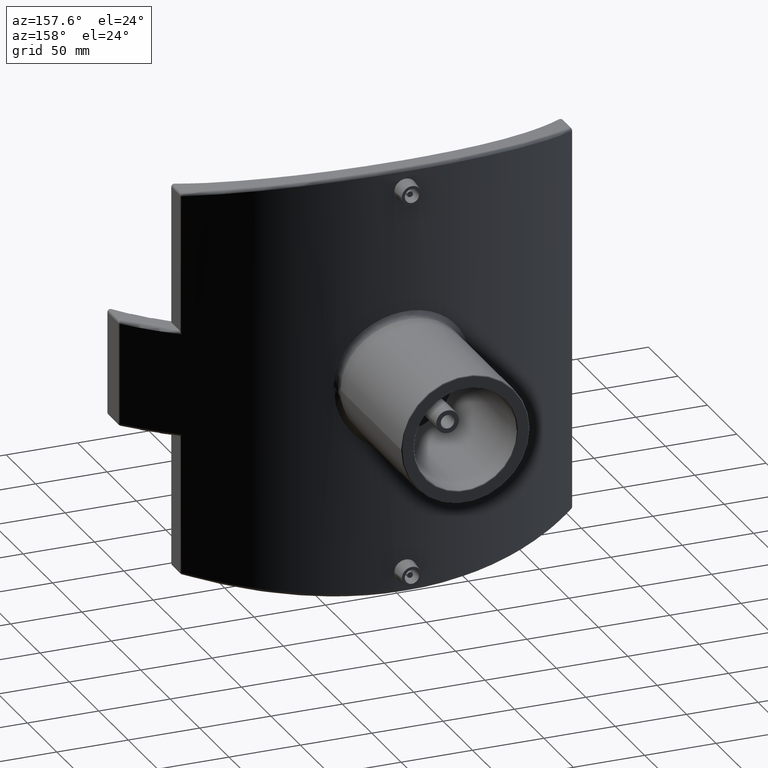
[diagram: clean part render]
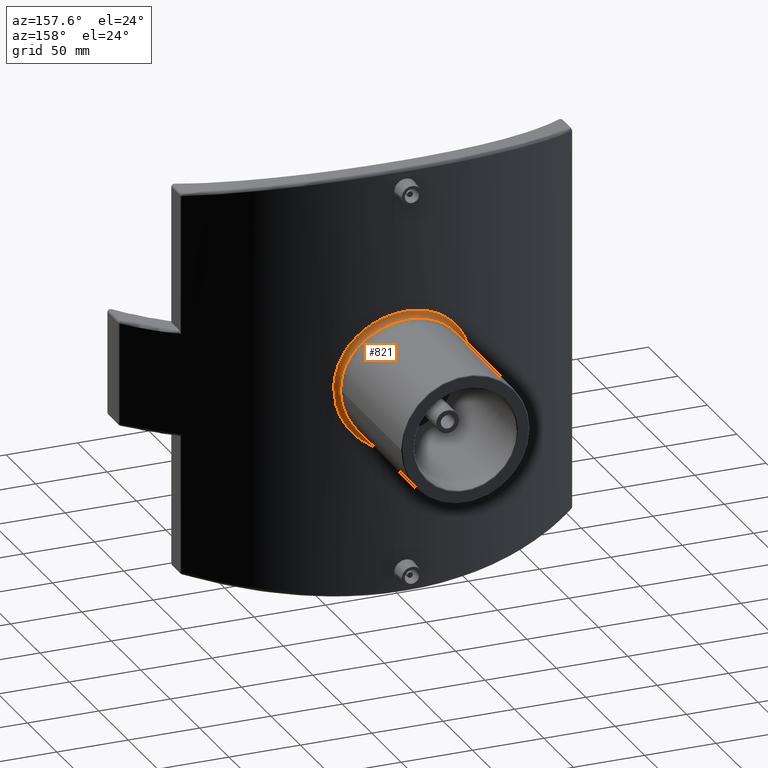
[diagram: same view with one face highlighted and labeled with its STEP entity id]
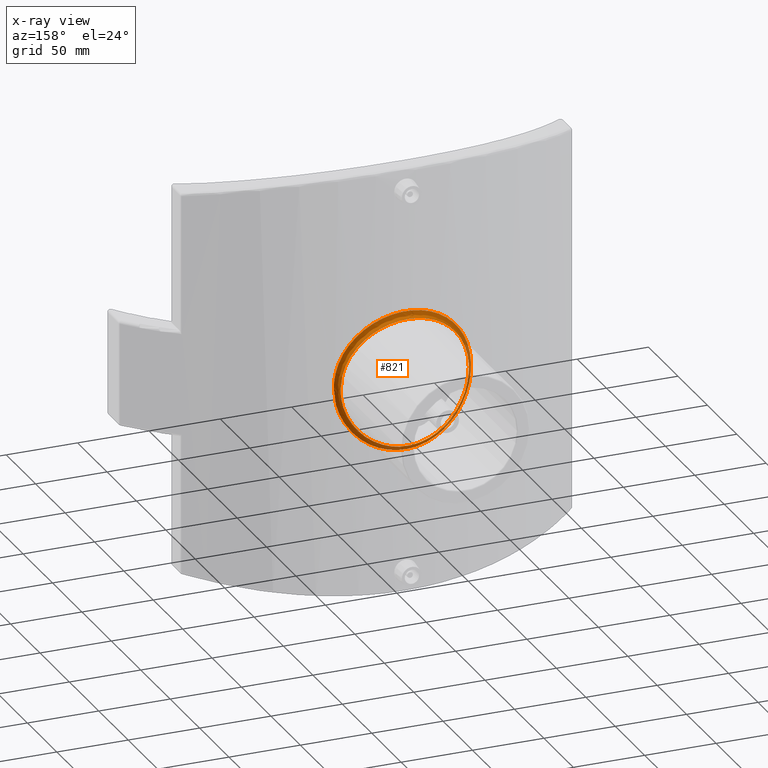
[diagram: x-ray of the same camera — body ghosted, the highlighted face saturated]
A machine part, auxiliary view. The second image highlights one B-rep face of the part: STEP entity #821.
The next image is the same camera in x-ray: the body ghosted, the highlighted face saturated — about 14% of this face is hidden behind the body in this view.
In plain terms, the highlighted face is a freeform B-spline surface patch.
Its self-contained STEP definition (entity closure, byte-faithful):
#89=B_SPLINE_SURFACE_WITH_KNOTS('',3,3,((#1392,#1393,#1394,#1395,#1396,
#1397,#1398,#1399,#1400,#1401,#1402,#1403,#1404,#1405,#1406,#1407,#1408,
#1409,#1410,#1411,#1412,#1413),(#1414,#1415,#1416,#1417,#1418,#1419,#1420,
#1421,#1422,#1423,#1424,#1425,#1426,#1427,#1428,#1429,#1430,#1431,#1432,
#1433,#1434,#1435),(#1436,#1437,#1438,#1439,#1440,#1441,#1442,#1443,#1444,
#1445,#1446,#1447,#1448,#1449,#1450,#1451,#1452,#1453,#1454,#1455,#1456,
#1457),(#1458,#1459,#1460,#1461,#1462,#1463,#1464,#1465,#1466,#1467,#1468,
#1469,#1470,#1471,#1472,#1473,#1474,#1475,#1476,#1477,#1478,#1479),(#1480,
#1481,#1482,#1483,#1484,#1485,#1486,#1487,#1488,#1489,#1490,#1491,#1492,
#1493,#1494,#1495,#1496,#1497,#1498,#1499,#1500,#1501)),.UNSPECIFIED.,.F.,
 .T.,.F.,(4,1,4),(4,1,1,1,1,1,1,1,1,1,1,1,1,1,1,1,1,1,1,4),(0.,0.571428571428571,
1.),(0.,1.94344182245271,3.88688364490542,5.83032546735814,6.80204637858449,
7.77376728981085,9.06939517144599,10.3650230530811,11.6606509347163,12.9562788163514,
14.2519066979866,15.5475345796217,16.8431624612568,18.138790342892,19.4344182245271,
20.7300461061623,22.0256739877974,23.3213018694325,25.2647436918853,27.208185514338),
 .UNSPECIFIED.);
#95=B_SPLINE_CURVE_WITH_KNOTS('',3,(#1370,#1371,#1372,#1373,#1374,#1375,
#1376,#1377,#1378,#1379,#1380,#1381,#1382,#1383,#1384,#1385,#1386,#1387,
#1388,#1389,#1390,#1391),.UNSPECIFIED.,.T.,.F.,(4,1,1,1,1,1,1,1,1,1,1,1,
1,1,1,1,1,1,1,4),(0.,1.94344182245271,3.88688364490542,5.83032546735814,
6.80204637858449,7.77376728981085,9.06939517144599,10.3650230530811,11.6606509347163,
12.9562788163514,14.2519066979866,15.5475345796217,16.8431624612568,18.138790342892,
19.4344182245271,20.7300461061623,22.0256739877974,23.3213018694325,25.2647436918853,
27.208185514338),.UNSPECIFIED.);
#96=B_SPLINE_CURVE_WITH_KNOTS('',3,(#1504,#1505,#1506,#1507,#1508,#1509,
#1510,#1511,#1512,#1513,#1514,#1515,#1516,#1517,#1518,#1519,#1520,#1521,
#1522,#1523,#1524,#1525),.UNSPECIFIED.,.T.,.F.,(4,1,1,1,1,1,1,1,1,1,1,1,
1,1,1,1,1,1,1,4),(-27.208185514338,-25.2647436918853,-23.3213018694325,
-22.0256739877974,-20.7300461061623,-19.4344182245271,-18.138790342892,
-16.8431624612568,-15.5475345796217,-14.2519066979866,-12.9562788163514,
-11.6606509347163,-10.3650230530811,-9.06939517144599,-7.77376728981085,
-6.80204637858449,-5.83032546735814,-3.88688364490542,-1.94344182245271,
0.),.UNSPECIFIED.);
#184=FACE_OUTER_BOUND('',#255,.T.);
#255=EDGE_LOOP('',(#592,#593,#594,#595));
#338=CIRCLE('',#893,3.99999999999999);
#402=VERTEX_POINT('',#1369);
#403=VERTEX_POINT('',#1502);
#473=EDGE_CURVE('',#402,#402,#95,.T.);
#474=EDGE_CURVE('',#403,#402,#338,.T.);
#475=EDGE_CURVE('',#403,#403,#96,.T.);
#592=ORIENTED_EDGE('',*,*,#474,.T.);
#593=ORIENTED_EDGE('',*,*,#473,.T.);
#594=ORIENTED_EDGE('',*,*,#474,.F.);
#595=ORIENTED_EDGE('',*,*,#475,.T.);
#821=ADVANCED_FACE('',(#184),#89,.T.);
#893=AXIS2_PLACEMENT_3D('',#1503,#1028,#1029);
#1028=DIRECTION('center_axis',(0.,0.,-1.));
#1029=DIRECTION('ref_axis',(-0.223744292237445,-0.97464788087348,0.));
#1369=CARTESIAN_POINT('',(45.,213.447885911292,0.));
#1370=CARTESIAN_POINT('Ctrl Pts',(45.0024886701191,213.445550724185,0.000284685886741112));
#1371=CARTESIAN_POINT('Ctrl Pts',(45.0021378087417,213.445241269557,6.74986226223219));
#1372=CARTESIAN_POINT('Ctrl Pts',(41.8993235238534,214.261080911124,20.2467309235262));
#1373=CARTESIAN_POINT('Ctrl Pts',(29.0304410831379,216.952294981176,36.3576612636348));
#1374=CARTESIAN_POINT('Ctrl Pts',(13.5117861939613,218.723055542166,43.86078073309));
#1375=CARTESIAN_POINT('Ctrl Pts',(-0.00111616459963351,219.092455024382,
45.3799196024512));
#1376=CARTESIAN_POINT('Ctrl Pts',(-11.2554159685205,218.782415354238,44.1112648355901));
#1377=CARTESIAN_POINT('Ctrl Pts',(-22.8730424359105,217.706969174009,39.53449867843));
#1378=CARTESIAN_POINT('Ctrl Pts',(-33.4752767671484,216.024631372991,31.0684368364334));
#1379=CARTESIAN_POINT('Ctrl Pts',(-41.1325787028082,214.403038014707,19.8583929064339));
#1380=CARTESIAN_POINT('Ctrl Pts',(-45.1679209342173,213.40646547372,6.83477532724632));
#1381=CARTESIAN_POINT('Ctrl Pts',(-45.1669320152337,213.407538718333,-6.83410336340664));
#1382=CARTESIAN_POINT('Ctrl Pts',(-41.1332672311351,214.402364391786,-19.8586032921422));
#1383=CARTESIAN_POINT('Ctrl Pts',(-33.4757415034644,216.024824264969,-31.0682390937125));
#1384=CARTESIAN_POINT('Ctrl Pts',(-22.8726592855625,217.706907472461,-39.5343934601502));
#1385=CARTESIAN_POINT('Ctrl Pts',(-10.2003547197345,218.879672300646,-44.5267584375078));
#1386=CARTESIAN_POINT('Ctrl Pts',(3.42818400813295,219.138223002848,-45.5543692968936));
#1387=CARTESIAN_POINT('Ctrl Pts',(16.730595010822,218.387441794427,-42.5017747976053));
#1388=CARTESIAN_POINT('Ctrl Pts',(30.4550041574747,216.64886716341,-34.5618133026467));
#1389=CARTESIAN_POINT('Ctrl Pts',(41.9014286921182,214.262937638891,-20.2507345345465));
#1390=CARTESIAN_POINT('Ctrl Pts',(45.0028395314966,213.445860178813,-6.74929289045871));
#1391=CARTESIAN_POINT('Ctrl Pts',(45.0024886701191,213.445550724185,0.000284685886734345));
#1392=CARTESIAN_POINT('Ctrl Pts',(48.1076832206702,209.54700185251,0.000309991298890729));
#1393=CARTESIAN_POINT('Ctrl Pts',(48.1073081496797,209.546698050022,7.34985001887504));
#1394=CARTESIAN_POINT('Ctrl Pts',(44.7903981049006,210.347636510921,22.0464403389507));
#1395=CARTESIAN_POINT('Ctrl Pts',(31.0335562466624,212.989695986086,39.5894533759579));
#1396=CARTESIAN_POINT('Ctrl Pts',(14.4441062966396,214.728113888428,47.7595167982535));
#1397=CARTESIAN_POINT('Ctrl Pts',(-0.00119318052330378,215.090766348137,
49.4136902337802));
#1398=CARTESIAN_POINT('Ctrl Pts',(-12.0320453808588,214.786389503019,48.0322661543092));
#1399=CARTESIAN_POINT('Ctrl Pts',(-24.451293968779,213.730586175397,43.0486763387349));
#1400=CARTESIAN_POINT('Ctrl Pts',(-35.7850878479866,212.078976005448,33.8300756663386));
#1401=CARTESIAN_POINT('Ctrl Pts',(-43.9707475021902,210.487000790694,21.6235833870058));
#1402=CARTESIAN_POINT('Ctrl Pts',(-48.2845303949243,209.508630487899,7.44231091189044));
#1403=CARTESIAN_POINT('Ctrl Pts',(-48.2834732400292,209.50968412987,-7.44157921793164));
#1404=CARTESIAN_POINT('Ctrl Pts',(-43.971483539321,210.486339471388,-21.623812473666));
#1405=CARTESIAN_POINT('Ctrl Pts',(-35.7855846513443,212.079165374285,-33.8298603464869));
#1406=CARTESIAN_POINT('Ctrl Pts',(-24.4508843808625,213.730525600818,-43.0485617677192));
#1407=CARTESIAN_POINT('Ctrl Pts',(-10.9041843706142,214.881870066844,-48.4846925208418));
#1408=CARTESIAN_POINT('Ctrl Pts',(3.66473044400616,215.135698381792,-49.6036465677285));
#1409=CARTESIAN_POINT('Ctrl Pts',(17.8850145549478,214.398630072154,-46.2797103351702));
#1410=CARTESIAN_POINT('Ctrl Pts',(32.5564148958901,212.691810228919,-37.6339744851042));
#1411=CARTESIAN_POINT('Ctrl Pts',(44.7926485308438,210.349459325852,-22.0507998265062));
#1412=CARTESIAN_POINT('Ctrl Pts',(48.1080582916608,209.547305654999,-7.34923003627726));
#1413=CARTESIAN_POINT('Ctrl Pts',(48.1076832206702,209.54700185251,0.000309991298890729));
#1414=CARTESIAN_POINT('Ctrl Pts',(47.108906247104,209.776439069321,0.000285277363843676));
#1415=CARTESIAN_POINT('Ctrl Pts',(47.1085628124149,209.776170731857,7.19199062258069));
#1416=CARTESIAN_POINT('Ctrl Pts',(43.8340471603791,210.549767430716,21.5731152201964));
#1417=CARTESIAN_POINT('Ctrl Pts',(30.302784175034,213.086687911726,38.679406740579));
#1418=CARTESIAN_POINT('Ctrl Pts',(14.0831711336165,214.741754098247,46.6018526998167));
#1419=CARTESIAN_POINT('Ctrl Pts',(-0.000762425193477644,215.086009009514,
48.2036832681891));
#1420=CARTESIAN_POINT('Ctrl Pts',(-11.7326378360145,214.796838086272,46.8658663232957));
#1421=CARTESIAN_POINT('Ctrl Pts',(-23.8644231016041,213.792153152184,42.033810237687));
#1422=CARTESIAN_POINT('Ctrl Pts',(-34.9761539197698,212.212848379825,33.0658193734816));
#1423=CARTESIAN_POINT('Ctrl Pts',(-43.0291603652268,210.682857702419,21.1532694477144));
#1424=CARTESIAN_POINT('Ctrl Pts',(-47.2832007018895,209.739607679016,7.28380705509203));
#1425=CARTESIAN_POINT('Ctrl Pts',(-47.2820520371392,209.740493530194,-7.28317000579664));
#1426=CARTESIAN_POINT('Ctrl Pts',(-43.0299799276145,210.682257033534,-21.1534480807187));
#1427=CARTESIAN_POINT('Ctrl Pts',(-34.9765273084018,212.212966051361,-33.0656044468467));
#1428=CARTESIAN_POINT('Ctrl Pts',(-23.8642413539922,213.791976873188,-42.0336042645108));
#1429=CARTESIAN_POINT('Ctrl Pts',(-10.6306723499939,214.887738555217,-47.3045270536415));
#1430=CARTESIAN_POINT('Ctrl Pts',(3.5719898635975,215.128466980324,-48.3873345524154));
#1431=CARTESIAN_POINT('Ctrl Pts',(17.4449473311745,214.428455821676,-45.1684066230914));
#1432=CARTESIAN_POINT('Ctrl Pts',(31.8010143369738,212.80104341402,-36.7730189765762));
#1433=CARTESIAN_POINT('Ctrl Pts',(43.8361077685139,210.551377455498,-21.5771168511047));
#1434=CARTESIAN_POINT('Ctrl Pts',(47.1092496817931,209.776707406785,-7.191420067853));
#1435=CARTESIAN_POINT('Ctrl Pts',(47.108906247104,209.776439069321,0.000285277363843676));
#1436=CARTESIAN_POINT('Ctrl Pts',(45.5332463400698,210.881539509465,0.000278736733477896));
#1437=CARTESIAN_POINT('Ctrl Pts',(45.5330306247495,210.881247388437,6.91740284697706));
#1438=CARTESIAN_POINT('Ctrl Pts',(42.3315402244535,211.645237390486,20.7494153040702));
#1439=CARTESIAN_POINT('Ctrl Pts',(29.1679960093606,214.13910085833,37.099951981602));
#1440=CARTESIAN_POINT('Ctrl Pts',(13.5285437327906,215.753461862047,44.597214683182));
#1441=CARTESIAN_POINT('Ctrl Pts',(-0.000675642853615857,216.088597618408,
46.1096760635108));
#1442=CARTESIAN_POINT('Ctrl Pts',(-11.2708273344212,215.80730459808,44.8467974357338));
#1443=CARTESIAN_POINT('Ctrl Pts',(-22.9556813332758,214.827461735613,40.2744536378801));
#1444=CARTESIAN_POINT('Ctrl Pts',(-33.7144800126151,213.280259415518,31.7382091032132));
#1445=CARTESIAN_POINT('Ctrl Pts',(-41.5501179912035,211.775518082007,20.3350201119498));
#1446=CARTESIAN_POINT('Ctrl Pts',(-45.7032303706249,210.845182025588,7.00828902155573));
#1447=CARTESIAN_POINT('Ctrl Pts',(-45.7020306371245,210.846222086861,-7.00754910363194));
#1448=CARTESIAN_POINT('Ctrl Pts',(-41.5509925421335,211.774894669445,-20.3353591704699));
#1449=CARTESIAN_POINT('Ctrl Pts',(-33.7147245327927,213.28044757752,-31.7379940366781));
#1450=CARTESIAN_POINT('Ctrl Pts',(-22.955610343771,214.827444430489,-40.2744360633628));
#1451=CARTESIAN_POINT('Ctrl Pts',(-10.2090864438922,215.89578684617,-45.261621930579));
#1452=CARTESIAN_POINT('Ctrl Pts',(3.42864575800331,216.130183598128,-46.2830182531048));
#1453=CARTESIAN_POINT('Ctrl Pts',(16.7653669790378,215.448372774156,-43.2434437921008));
#1454=CARTESIAN_POINT('Ctrl Pts',(30.6272332013696,213.857821960129,-35.2775652623554));
#1455=CARTESIAN_POINT('Ctrl Pts',(42.3328345163752,211.646990116656,-20.7533293573913));
#1456=CARTESIAN_POINT('Ctrl Pts',(45.5334620553901,210.881831630493,-6.9168453735101));
#1457=CARTESIAN_POINT('Ctrl Pts',(45.5332463400698,210.881539509465,0.000278736733477896));
#1458=CARTESIAN_POINT('Ctrl Pts',(45.0026519833408,212.676875458932,0.000270958073634684));
#1459=CARTESIAN_POINT('Ctrl Pts',(45.0023461587072,212.676565948642,6.77614361368986));
#1460=CARTESIAN_POINT('Ctrl Pts',(41.8720777742653,213.476894589744,20.3257168042348));
#1461=CARTESIAN_POINT('Ctrl Pts',(28.9419396203091,216.109151852313,36.4252251143935));
#1462=CARTESIAN_POINT('Ctrl Pts',(13.4505216328032,217.833149620696,43.8711505521229));
#1463=CARTESIAN_POINT('Ctrl Pts',(-0.000858737680892987,218.192336245613,
45.3763711885311));
#1464=CARTESIAN_POINT('Ctrl Pts',(-11.2051933290582,217.89091168706,44.1193411744453));
#1465=CARTESIAN_POINT('Ctrl Pts',(-22.7924840901885,216.844013685765,39.5778267664491));
#1466=CARTESIAN_POINT('Ctrl Pts',(-33.4077084762024,215.202008342679,31.1426401136975));
#1467=CARTESIAN_POINT('Ctrl Pts',(-41.1030854404867,213.615368489479,19.9282936319357));
#1468=CARTESIAN_POINT('Ctrl Pts',(-45.1692141788647,212.638586638942,6.86315914205736));
#1469=CARTESIAN_POINT('Ctrl Pts',(-45.1681316661645,212.639681044365,-6.86252993614161));
#1470=CARTESIAN_POINT('Ctrl Pts',(-41.1038552672099,213.614702737029,-19.9284988015102));
#1471=CARTESIAN_POINT('Ctrl Pts',(-33.4080744605984,215.202214262315,-31.1424367024316));
#1472=CARTESIAN_POINT('Ctrl Pts',(-22.7922642990497,216.843992975102,-39.5776824138083));
#1473=CARTESIAN_POINT('Ctrl Pts',(-10.1526609182885,217.985526449005,-44.5315827169001));
#1474=CARTESIAN_POINT('Ctrl Pts',(3.41119783452528,218.236903190511,-45.5489639325344));
#1475=CARTESIAN_POINT('Ctrl Pts',(16.6608980628428,217.506678414613,-42.5242673457201));
#1476=CARTESIAN_POINT('Ctrl Pts',(30.3739471314787,215.812252480494,-34.6309592906298));
#1477=CARTESIAN_POINT('Ctrl Pts',(41.8739127220671,213.478751651482,-20.3295191294625));
#1478=CARTESIAN_POINT('Ctrl Pts',(45.0029578079744,212.677184969222,-6.77560169754259));
#1479=CARTESIAN_POINT('Ctrl Pts',(45.0026519833408,212.676875458932,0.000270958073634684));
#1480=CARTESIAN_POINT('Ctrl Pts',(45.0024886701191,213.445550724185,0.000284685886741112));
#1481=CARTESIAN_POINT('Ctrl Pts',(45.0021378087417,213.445241269557,6.74986226223219));
#1482=CARTESIAN_POINT('Ctrl Pts',(41.8993235238534,214.261080911124,20.2467309235262));
#1483=CARTESIAN_POINT('Ctrl Pts',(29.0304410831379,216.952294981176,36.3576612636348));
#1484=CARTESIAN_POINT('Ctrl Pts',(13.5117861939613,218.723055542166,43.86078073309));
#1485=CARTESIAN_POINT('Ctrl Pts',(-0.00111616459963351,219.092455024382,
45.3799196024512));
#1486=CARTESIAN_POINT('Ctrl Pts',(-11.2554159685205,218.782415354238,44.1112648355901));
#1487=CARTESIAN_POINT('Ctrl Pts',(-22.8730424359105,217.706969174009,39.53449867843));
#1488=CARTESIAN_POINT('Ctrl Pts',(-33.4752767671484,216.024631372991,31.0684368364334));
#1489=CARTESIAN_POINT('Ctrl Pts',(-41.1325787028082,214.403038014707,19.8583929064339));
#1490=CARTESIAN_POINT('Ctrl Pts',(-45.1679209342173,213.40646547372,6.83477532724632));
#1491=CARTESIAN_POINT('Ctrl Pts',(-45.1669320152337,213.407538718333,-6.83410336340664));
#1492=CARTESIAN_POINT('Ctrl Pts',(-41.1332672311351,214.402364391786,-19.8586032921422));
#1493=CARTESIAN_POINT('Ctrl Pts',(-33.4757415034644,216.024824264969,-31.0682390937125));
#1494=CARTESIAN_POINT('Ctrl Pts',(-22.8726592855625,217.706907472461,-39.5343934601502));
#1495=CARTESIAN_POINT('Ctrl Pts',(-10.2003547197345,218.879672300646,-44.5267584375078));
#1496=CARTESIAN_POINT('Ctrl Pts',(3.42818400813295,219.138223002848,-45.5543692968936));
#1497=CARTESIAN_POINT('Ctrl Pts',(16.730595010822,218.387441794427,-42.5017747976053));
#1498=CARTESIAN_POINT('Ctrl Pts',(30.4550041574747,216.64886716341,-34.5618133026467));
#1499=CARTESIAN_POINT('Ctrl Pts',(41.9014286921182,214.262937638891,-20.2507345345465));
#1500=CARTESIAN_POINT('Ctrl Pts',(45.0028395314966,213.445860178813,-6.7492928904587));
#1501=CARTESIAN_POINT('Ctrl Pts',(45.0024886701191,213.445550724185,0.000284685886741112));
#1502=CARTESIAN_POINT('',(48.1050228310502,209.549294387798,0.));
#1503=CARTESIAN_POINT('Origin',(49.,213.447885911292,0.));
#1504=CARTESIAN_POINT('Ctrl Pts',(48.1076832206702,209.54700185251,0.000309991298883538));
#1505=CARTESIAN_POINT('Ctrl Pts',(48.1080582916608,209.547305654999,-7.34923003627727));
#1506=CARTESIAN_POINT('Ctrl Pts',(44.7926485308438,210.349459325852,-22.0507998265062));
#1507=CARTESIAN_POINT('Ctrl Pts',(32.5564148958901,212.691810228919,-37.6339744851042));
#1508=CARTESIAN_POINT('Ctrl Pts',(17.8850145549478,214.398630072154,-46.2797103351702));
#1509=CARTESIAN_POINT('Ctrl Pts',(3.66473044400616,215.135698381792,-49.6036465677285));
#1510=CARTESIAN_POINT('Ctrl Pts',(-10.9041843706142,214.881870066844,-48.4846925208418));
#1511=CARTESIAN_POINT('Ctrl Pts',(-24.4508843808625,213.730525600818,-43.0485617677192));
#1512=CARTESIAN_POINT('Ctrl Pts',(-35.7855846513443,212.079165374285,-33.8298603464869));
#1513=CARTESIAN_POINT('Ctrl Pts',(-43.971483539321,210.486339471388,-21.623812473666));
#1514=CARTESIAN_POINT('Ctrl Pts',(-48.2834732400292,209.50968412987,-7.44157921793164));
#1515=CARTESIAN_POINT('Ctrl Pts',(-48.2845303949243,209.508630487899,7.44231091189044));
#1516=CARTESIAN_POINT('Ctrl Pts',(-43.9707475021902,210.487000790694,21.6235833870058));
#1517=CARTESIAN_POINT('Ctrl Pts',(-35.7850878479866,212.078976005448,33.8300756663386));
#1518=CARTESIAN_POINT('Ctrl Pts',(-24.451293968779,213.730586175397,43.0486763387349));
#1519=CARTESIAN_POINT('Ctrl Pts',(-12.0320453808588,214.786389503019,48.0322661543092));
#1520=CARTESIAN_POINT('Ctrl Pts',(-0.00119318052330378,215.090766348137,
49.4136902337802));
#1521=CARTESIAN_POINT('Ctrl Pts',(14.4441062966396,214.728113888428,47.7595167982535));
#1522=CARTESIAN_POINT('Ctrl Pts',(31.0335562466624,212.989695986086,39.5894533759579));
#1523=CARTESIAN_POINT('Ctrl Pts',(44.7903981049006,210.347636510921,22.0464403389507));
#1524=CARTESIAN_POINT('Ctrl Pts',(48.1073081496797,209.546698050022,7.34985001887504));
#1525=CARTESIAN_POINT('Ctrl Pts',(48.1076832206702,209.54700185251,0.000309991298890729));